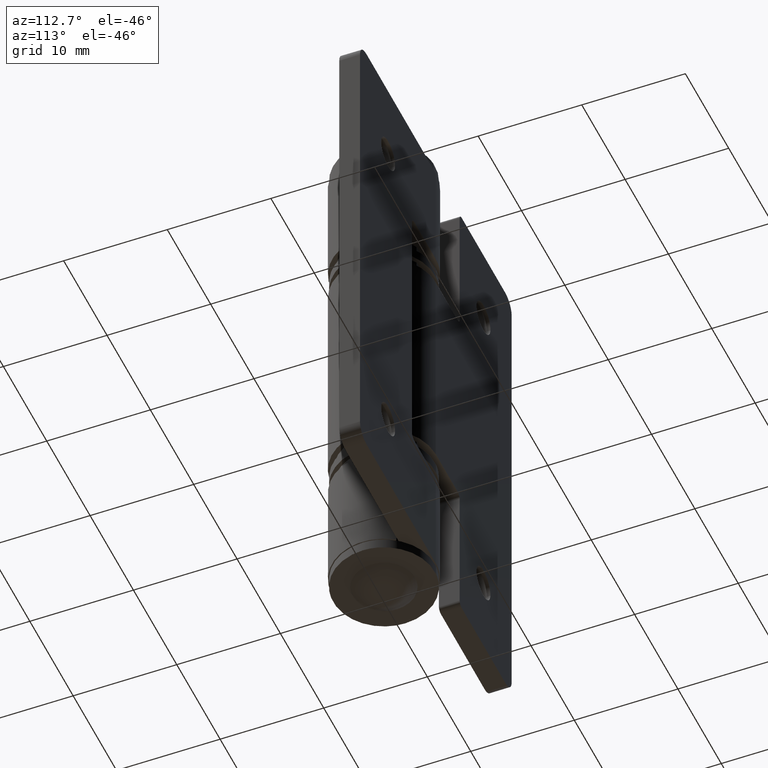
[diagram: clean part render]
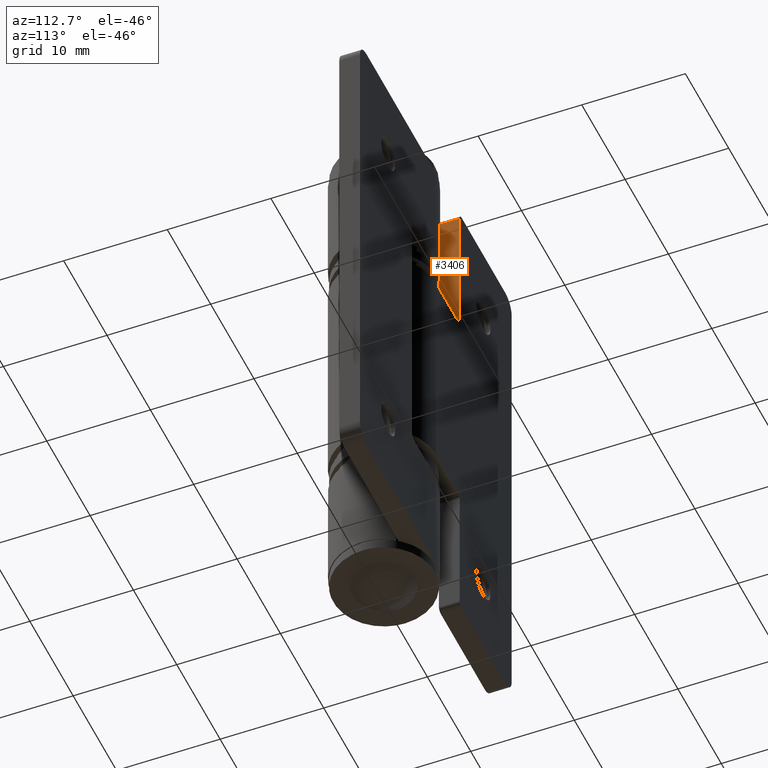
[diagram: same view with one face highlighted and labeled with its STEP entity id]
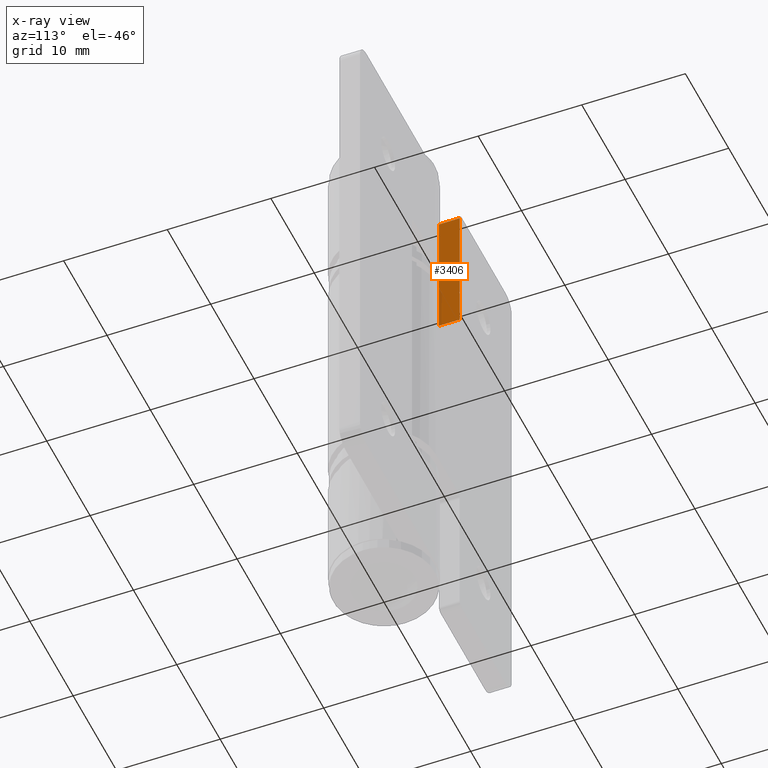
[diagram: x-ray of the same camera — body ghosted, the highlighted face saturated]
A machine part, auxiliary view. The second image highlights one B-rep face of the part: STEP entity #3406.
The next image is the same camera in x-ray: the body ghosted, the highlighted face saturated — about 6% of this face is hidden behind the body in this view.
In plain terms, the highlighted face is a freeform B-spline surface patch.
Its self-contained STEP definition (entity closure, byte-faithful):
#2967=CARTESIAN_POINT('',(-5.500000000000070,4.999999999998090,49.500000000000000));
#2968=VERTEX_POINT('',#2967);
#2989=CARTESIAN_POINT('',(-5.500000000000070,2.999999999999090,49.500000000000000));
#2990=VERTEX_POINT('',#2989);
#3004=CARTESIAN_POINT('',(-5.500000000000070,4.999999999998090,49.500000000000000));
#3005=CARTESIAN_POINT('',(-5.500000000000070,2.999999999999090,49.500000000000000));
#3006=QUASI_UNIFORM_CURVE('',1,(#3004,#3005),.UNSPECIFIED.,.F.,.U.);
#3007=EDGE_CURVE('',#2968,#2990,#3006,.T.);
#3026=CARTESIAN_POINT('',(-5.500000000000070,4.999999999998090,36.500000000000000));
#3027=VERTEX_POINT('',#3026);
#3043=CARTESIAN_POINT('',(-5.500000000000070,2.999999999999090,36.500000000000000));
#3044=VERTEX_POINT('',#3043);
#3045=CARTESIAN_POINT('',(-5.500000000000070,2.999999999999090,36.500000000000000));
#3046=CARTESIAN_POINT('',(-5.500000000000070,4.999999999998090,36.500000000000000));
#3047=QUASI_UNIFORM_CURVE('',1,(#3045,#3046),.UNSPECIFIED.,.F.,.U.);
#3048=EDGE_CURVE('',#3044,#3027,#3047,.T.);
#3387=CARTESIAN_POINT('',(-5.500000000000070,2.900100003875528,35.850650025196522));
#3388=CARTESIAN_POINT('',(-5.500000000000070,2.900100003875528,50.149350323490658));
#3389=CARTESIAN_POINT('',(-5.500000000000070,5.099900049765833,35.850650025196522));
#3390=CARTESIAN_POINT('',(-5.500000000000070,5.099900049765833,50.149350323490658));
#3391=B_SPLINE_SURFACE_WITH_KNOTS('',1,1,((#3387,#3389),(#3388,#3390)),.UNSPECIFIED.,.F.,.F.,.U.,(2,2),(2,2),(0.0,14.298700298294140),(0.0,2.199800045890305),.UNSPECIFIED.);
#3392=CARTESIAN_POINT('',(-5.500000000000070,2.999999999999090,49.500000000000000));
#3393=CARTESIAN_POINT('',(-5.500000000000070,2.999999999999090,36.500000000000000));
#3394=QUASI_UNIFORM_CURVE('',1,(#3392,#3393),.UNSPECIFIED.,.F.,.U.);
#3395=EDGE_CURVE('',#2990,#3044,#3394,.T.);
#3396=ORIENTED_EDGE('',*,*,#3395,.T.);
#3397=ORIENTED_EDGE('',*,*,#3048,.T.);
#3398=CARTESIAN_POINT('',(-5.500000000000070,4.999999999998090,36.500000000000000));
#3399=CARTESIAN_POINT('',(-5.500000000000070,4.999999999998090,49.500000000000000));
#3400=QUASI_UNIFORM_CURVE('',1,(#3398,#3399),.UNSPECIFIED.,.F.,.U.);
#3401=EDGE_CURVE('',#3027,#2968,#3400,.T.);
#3402=ORIENTED_EDGE('',*,*,#3401,.T.);
#3403=ORIENTED_EDGE('',*,*,#3007,.T.);
#3404=EDGE_LOOP('',(#3396,#3397,#3402,#3403));
#3405=FACE_OUTER_BOUND('',#3404,.T.);
#3406=ADVANCED_FACE('',(#3405),#3391,.F.);